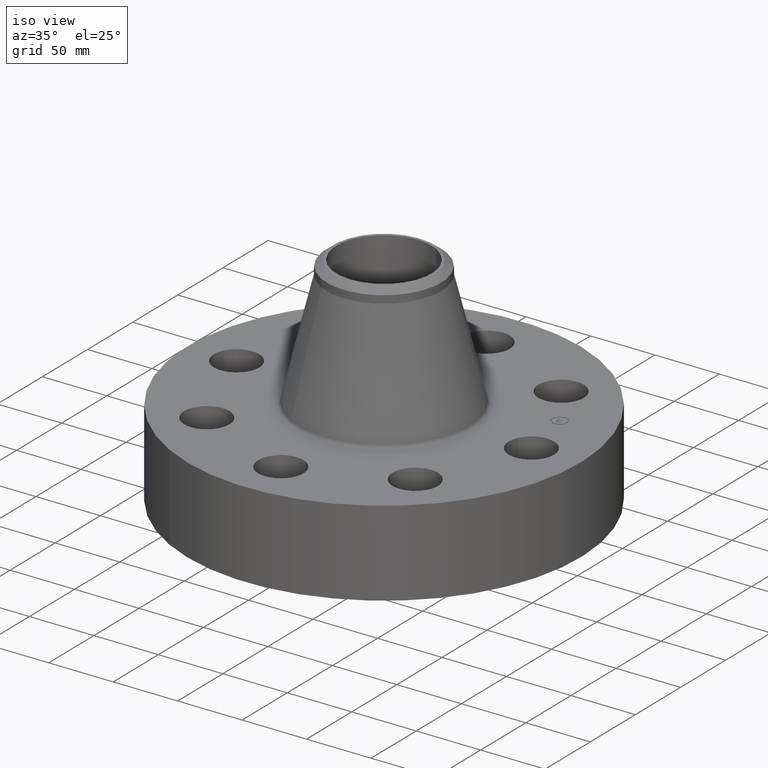
[diagram: clean part render]
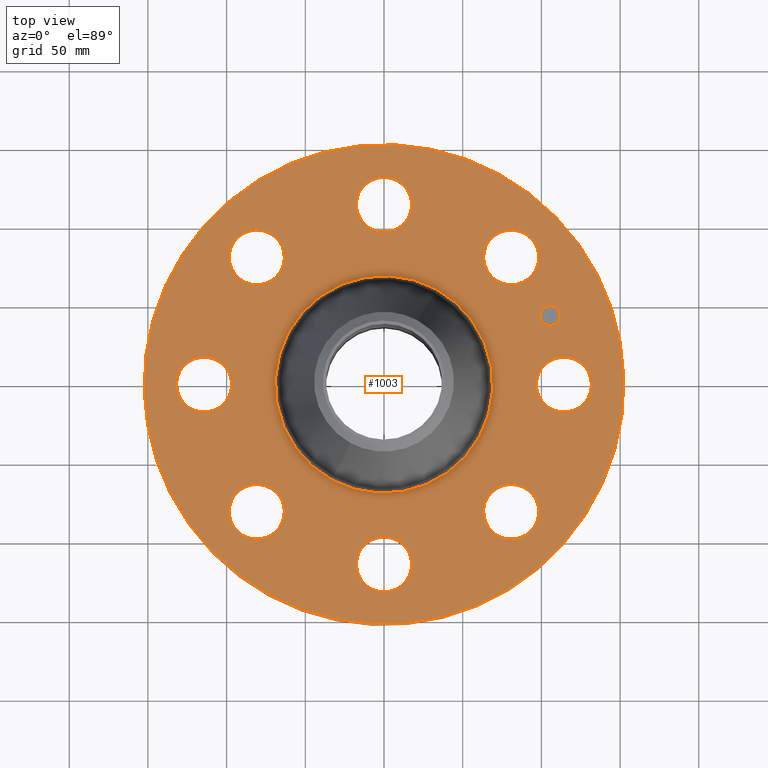
[diagram: tour spotlight — one face highlighted and labeled with its STEP entity id]
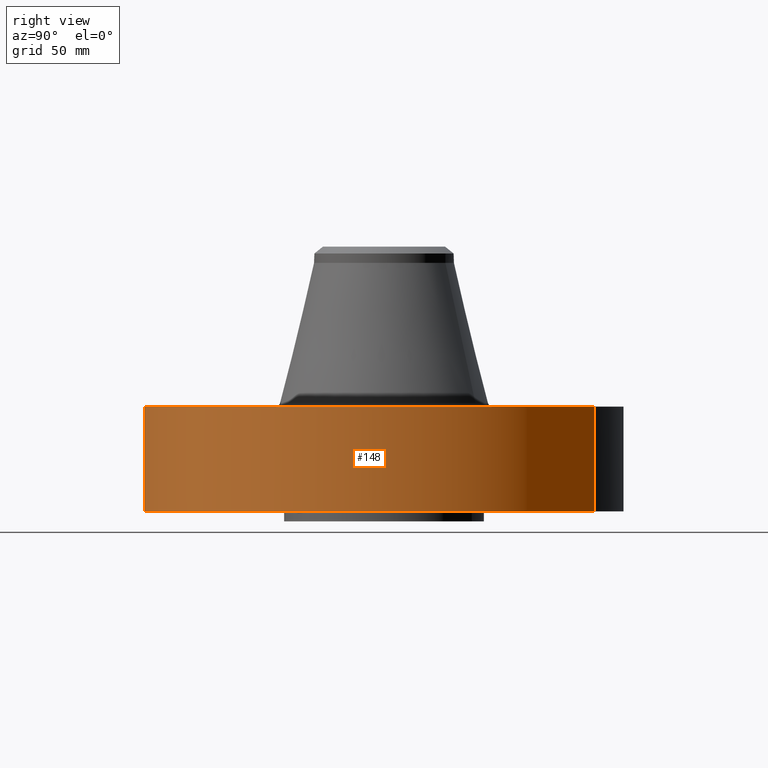
[diagram: tour spotlight — one face highlighted and labeled with its STEP entity id]
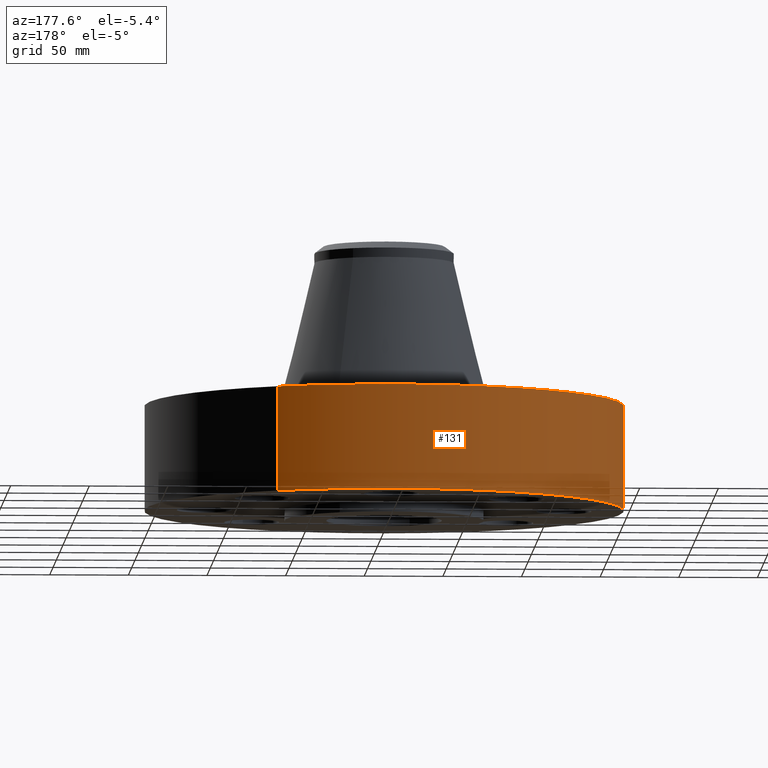
[diagram: tour spotlight — one face highlighted and labeled with its STEP entity id]
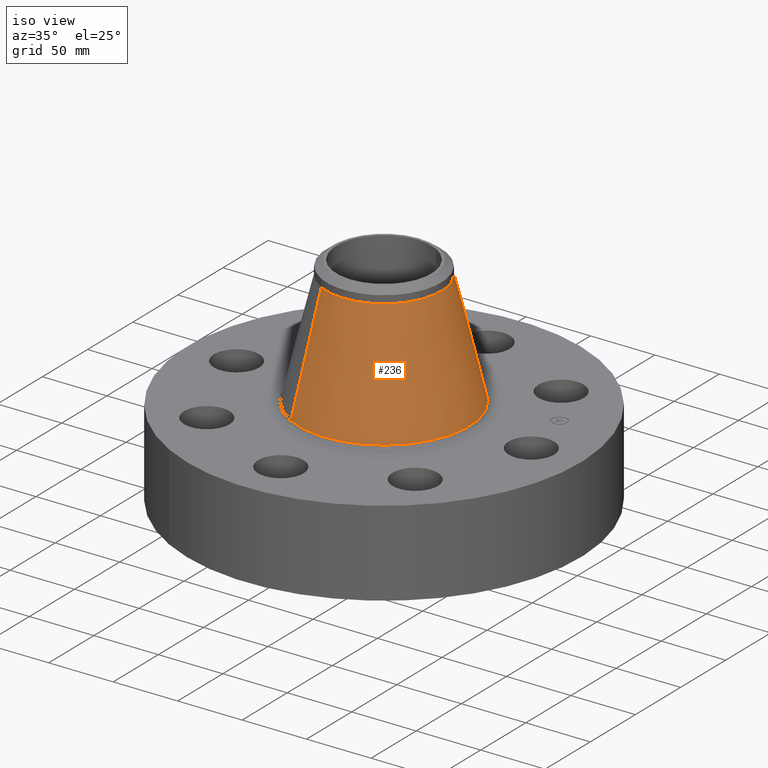
[diagram: tour spotlight — one face highlighted and labeled with its STEP entity id]
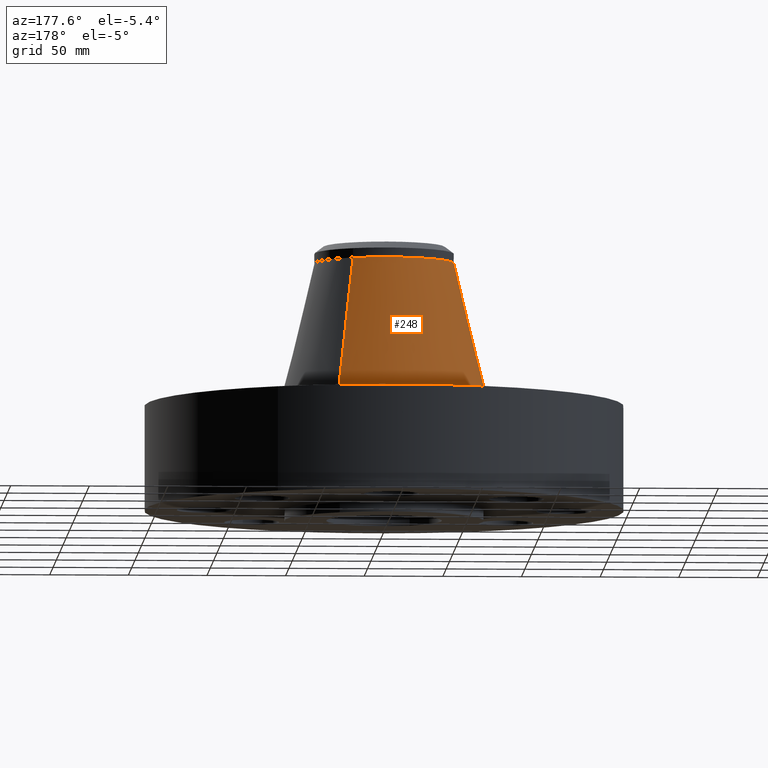
[diagram: tour spotlight — one face highlighted and labeled with its STEP entity id]
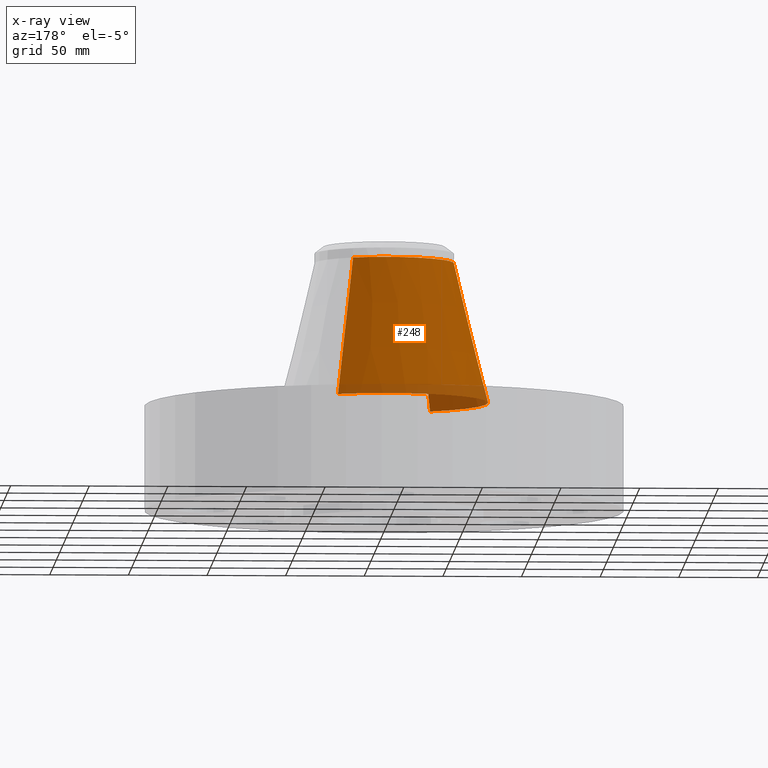
[diagram: x-ray of the same camera — body ghosted, this tour face saturated]
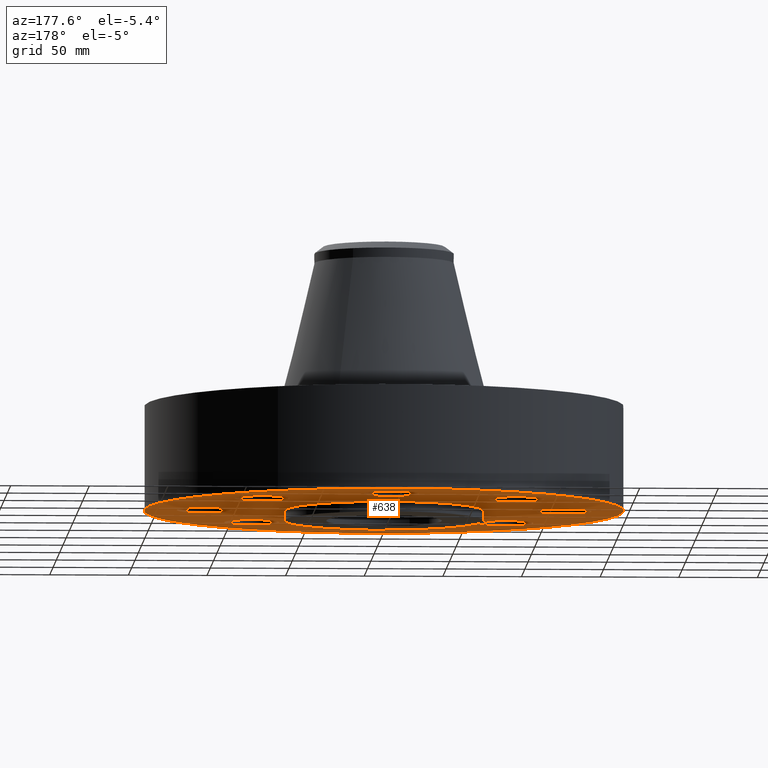
[diagram: tour spotlight — one face highlighted and labeled with its STEP entity id]
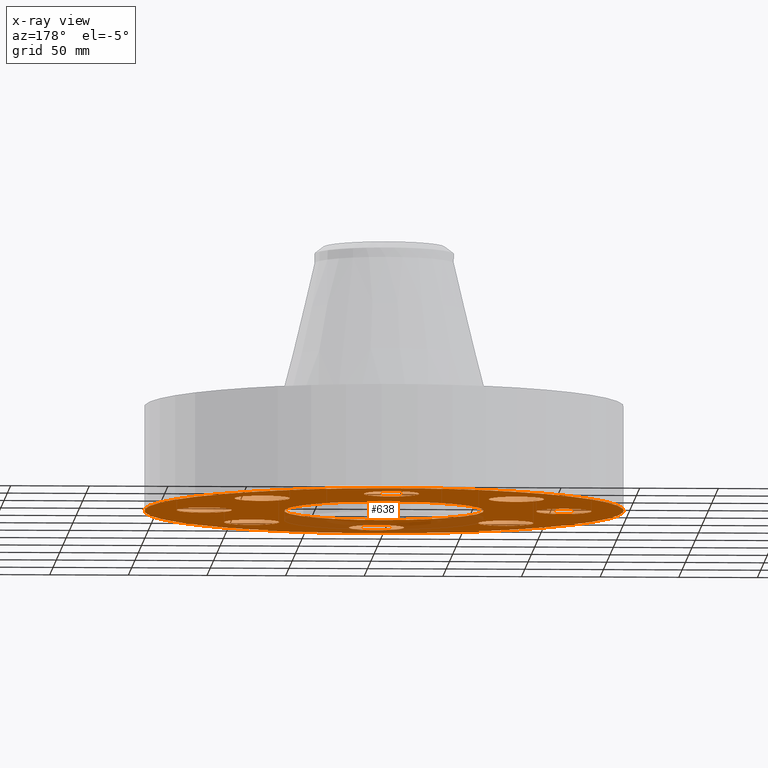
[diagram: x-ray of the same camera — body ghosted, this tour face saturated]
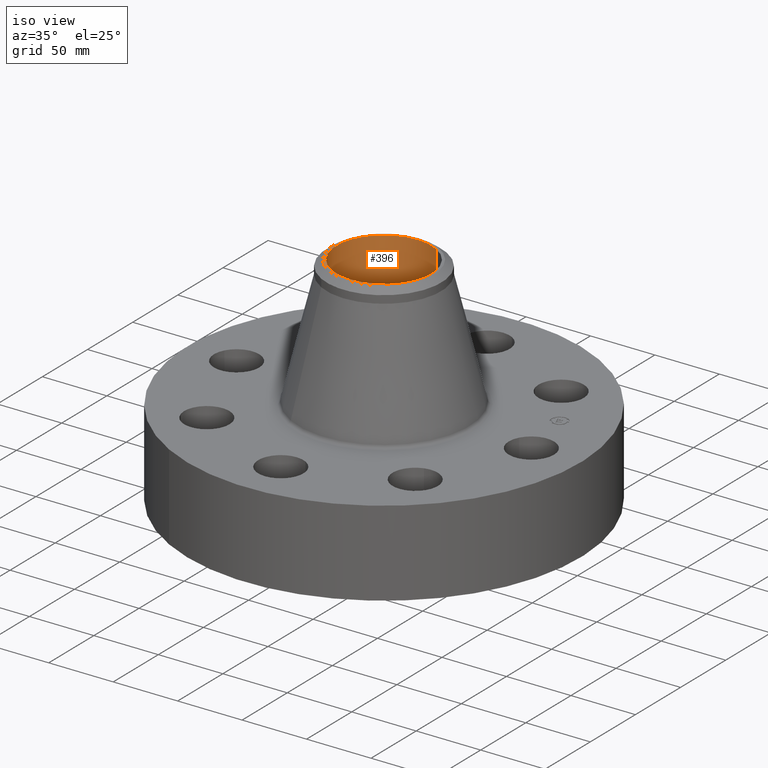
[diagram: tour spotlight — one face highlighted and labeled with its STEP entity id]
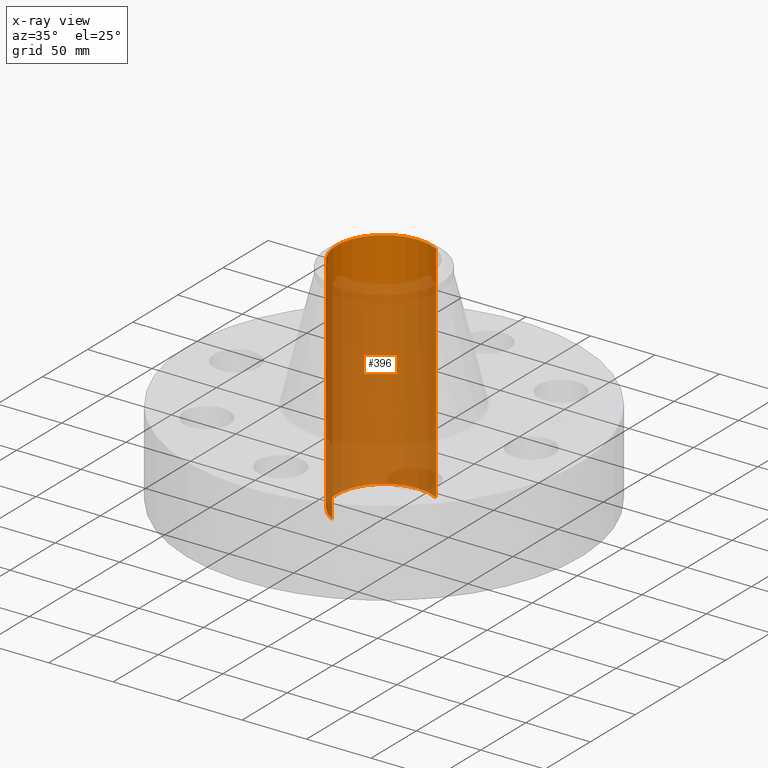
[diagram: x-ray of the same camera — body ghosted, this tour face saturated]
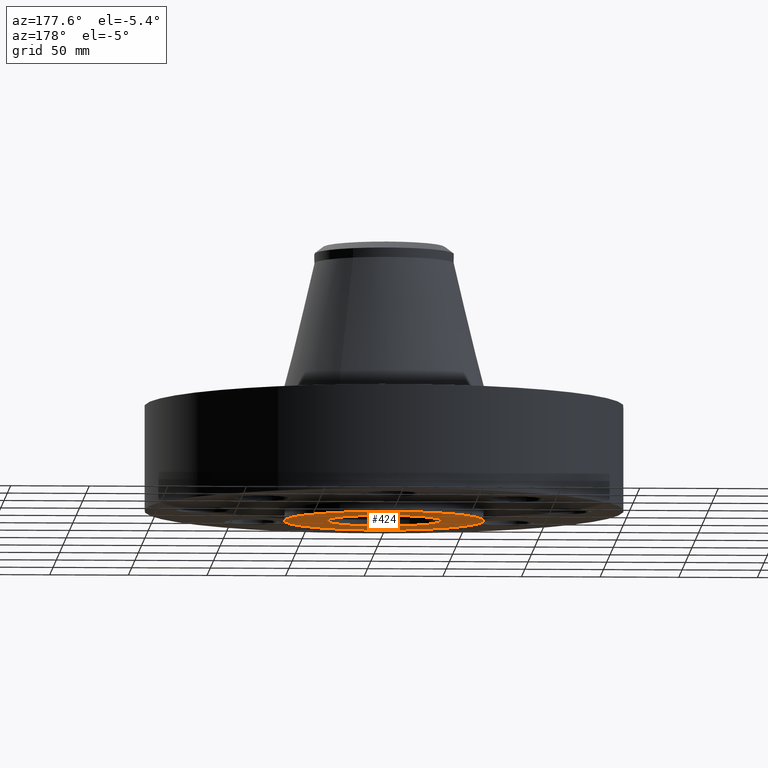
[diagram: tour spotlight — one face highlighted and labeled with its STEP entity id]
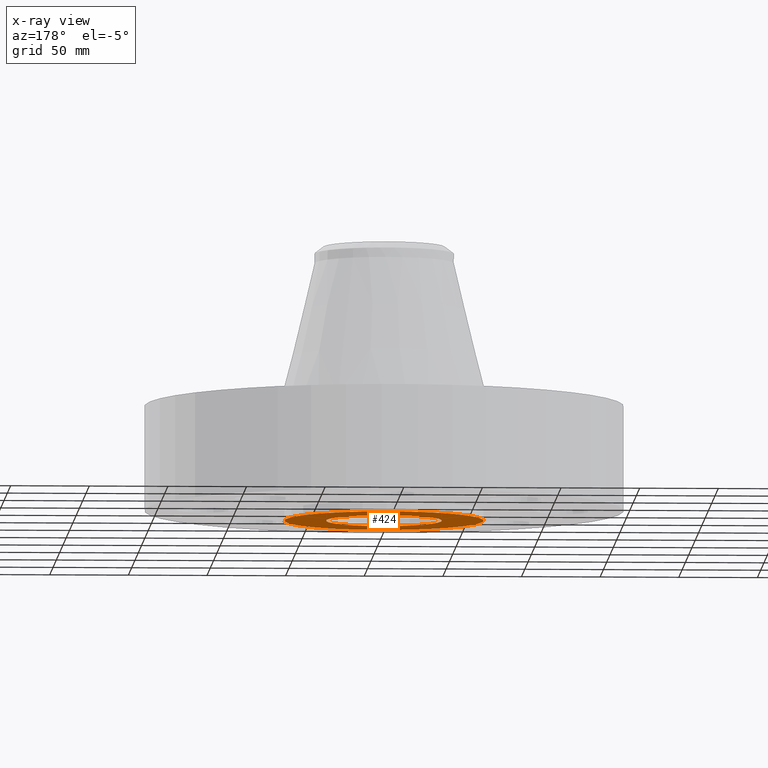
[diagram: x-ray of the same camera — body ghosted, this tour face saturated]
A machine part: a face-by-face anatomy tour. The part has 419 B-rep faces; the first image is the clean iso view, then the 8 largest visible faces are spotlighted one at a time (largest first), each with its STEP entity span.

Face 1 — top view, entity #1003. In plain terms, the highlighted planar face has unit normal (0, 0, -1).
Definition (entity closure, byte-faithful):
#65=AXIS2_PLACEMENT_3D('Circle Axis2P3D',#63,#64,$) ;
#82=AXIS2_PLACEMENT_3D('Circle Axis2P3D',#80,#81,$) ;
#115=AXIS2_PLACEMENT_3D('Circle Axis2P3D',#113,#114,$) ;
#139=AXIS2_PLACEMENT_3D('Circle Axis2P3D',#137,#138,$) ;
#156=AXIS2_PLACEMENT_3D('Circle Axis2P3D',#154,#155,$) ;
#191=AXIS2_PLACEMENT_3D('Circle Axis2P3D',#189,#190,$) ;
#660=AXIS2_PLACEMENT_3D('Circle Axis2P3D',#658,#659,$) ;
#672=AXIS2_PLACEMENT_3D('Circle Axis2P3D',#670,#671,$) ;
#703=AXIS2_PLACEMENT_3D('Circle Axis2P3D',#701,#702,$) ;
#715=AXIS2_PLACEMENT_3D('Circle Axis2P3D',#713,#714,$) ;
#746=AXIS2_PLACEMENT_3D('Circle Axis2P3D',#744,#745,$) ;
#758=AXIS2_PLACEMENT_3D('Circle Axis2P3D',#756,#757,$) ;
#789=AXIS2_PLACEMENT_3D('Circle Axis2P3D',#787,#788,$) ;
#801=AXIS2_PLACEMENT_3D('Circle Axis2P3D',#799,#800,$) ;
#832=AXIS2_PLACEMENT_3D('Circle Axis2P3D',#830,#831,$) ;
#844=AXIS2_PLACEMENT_3D('Circle Axis2P3D',#842,#843,$) ;
#875=AXIS2_PLACEMENT_3D('Circle Axis2P3D',#873,#874,$) ;
#887=AXIS2_PLACEMENT_3D('Circle Axis2P3D',#885,#886,$) ;
#918=AXIS2_PLACEMENT_3D('Circle Axis2P3D',#916,#917,$) ;
#930=AXIS2_PLACEMENT_3D('Circle Axis2P3D',#928,#929,$) ;
#943=AXIS2_PLACEMENT_3D('Plane Axis2P3D',#940,#941,#942) ;
#987=AXIS2_PLACEMENT_3D('Circle Axis2P3D',#985,#986,$) ;
#996=AXIS2_PLACEMENT_3D('Circle Axis2P3D',#994,#995,$) ;
#46=CARTESIAN_POINT('Vertex',(3.89446803231,0.330803621638,2.62000000001)) ;
#60=CARTESIAN_POINT('Vertex',(5.10553196772,-0.330803621638,2.62000000001)) ;
#63=CARTESIAN_POINT('Axis2P3D Location',(4.50000000002,0.,2.62000000001)) ;
#80=CARTESIAN_POINT('Axis2P3D Location',(4.50000000002,0.,2.62000000001)) ;
#110=CARTESIAN_POINT('Vertex',(-2.87655323164,-5.26549537136,2.62000000001)) ;
#113=CARTESIAN_POINT('Axis2P3D Location',(0.,0.,2.62000000001)) ;
#117=CARTESIAN_POINT('Vertex',(2.87655323164,5.26549537136,2.62000000001)) ;
#137=CARTESIAN_POINT('Axis2P3D Location',(0.,0.,2.62000000001)) ;
#154=CARTESIAN_POINT('Axis2P3D Location',(0.,0.,2.62000000001)) ;
#158=CARTESIAN_POINT('Vertex',(1.30369700467,2.38640135989,2.62000000001)) ;
#160=CARTESIAN_POINT('Vertex',(-1.30369700467,-2.38640135989,2.62000000001)) ;
#189=CARTESIAN_POINT('Axis2P3D Location',(0.,0.,2.62000000001)) ;
#648=CARTESIAN_POINT('Vertex',(-2.98771823886,2.51989127066,2.62000000001)) ;
#655=CARTESIAN_POINT('Vertex',(-3.37624279184,3.84406976004,2.62000000001)) ;
#658=CARTESIAN_POINT('Axis2P3D Location',(-3.18198051535,3.18198051535,2.62000000001)) ;
#670=CARTESIAN_POINT('Axis2P3D Location',(-3.18198051535,3.18198051535,2.62000000001)) ;
#691=CARTESIAN_POINT('Vertex',(0.330803621638,-3.89446803231,2.62000000001)) ;
#698=CARTESIAN_POINT('Vertex',(-0.330803621638,-5.10553196772,2.62000000001)) ;
#701=CARTESIAN_POINT('Axis2P3D Location',(-2.83936939293E-016,-4.50000000002,2.62000000001)) ;
#713=CARTESIAN_POINT('Axis2P3D Location',(-2.83936939293E-016,-4.50000000002,2.62000000001)) ;
#734=CARTESIAN_POINT('Vertex',(-0.330803621638,3.89446803231,2.62000000001)) ;
#741=CARTESIAN_POINT('Vertex',(0.330803621638,5.10553196772,2.62000000001)) ;
#744=CARTESIAN_POINT('Axis2P3D Location',(-2.67154120325E-016,4.50000000002,2.62000000001)) ;
#756=CARTESIAN_POINT('Axis2P3D Location',(-2.67154120325E-016,4.50000000002,2.62000000001)) ;
#777=CARTESIAN_POINT('Vertex',(-2.51989127066,-2.98771823886,2.62000000001)) ;
#784=CARTESIAN_POINT('Vertex',(-3.84406976004,-3.37624279184,2.62000000001)) ;
#787=CARTESIAN_POINT('Axis2P3D Location',(-3.18198051535,-3.18198051535,2.62000000001)) ;
#799=CARTESIAN_POINT('Axis2P3D Location',(-3.18198051535,-3.18198051535,2.62000000001)) ;
#820=CARTESIAN_POINT('Vertex',(2.51989127066,2.98771823886,2.62000000001)) ;
#827=CARTESIAN_POINT('Vertex',(3.84406976004,3.37624279184,2.62000000001)) ;
#830=CARTESIAN_POINT('Axis2P3D Location',(3.18198051535,3.18198051535,2.62000000001)) ;
#842=CARTESIAN_POINT('Axis2P3D Location',(3.18198051535,3.18198051535,2.62000000001)) ;
#863=CARTESIAN_POINT('Vertex',(-3.89446803231,-0.330803621638,2.62000000001)) ;
#870=CARTESIAN_POINT('Vertex',(-5.10553196772,0.330803621638,2.62000000001)) ;
#873=CARTESIAN_POINT('Axis2P3D Location',(-4.50000000002,-5.51091059619E-016,2.62000000001)) ;
#885=CARTESIAN_POINT('Axis2P3D Location',(-4.50000000002,-5.51091059619E-016,2.62000000001)) ;
#906=CARTESIAN_POINT('Vertex',(2.98771823886,-2.51989127066,2.62000000001)) ;
#913=CARTESIAN_POINT('Vertex',(3.37624279184,-3.84406976004,2.62000000001)) ;
#916=CARTESIAN_POINT('Axis2P3D Location',(3.18198051535,-3.18198051535,2.62000000001)) ;
#928=CARTESIAN_POINT('Axis2P3D Location',(3.18198051535,-3.18198051535,2.62000000001)) ;
#940=CARTESIAN_POINT('Axis2P3D Location',(0.,6.00000000002,2.62000000001)) ;
#985=CARTESIAN_POINT('Axis2P3D Location',(4.15745789632,1.72207544565,2.62000000001)) ;
#989=CARTESIAN_POINT('Vertex',(4.06274374681,1.95073562995,2.62000000001)) ;
#991=CARTESIAN_POINT('Vertex',(4.25217204583,1.49341526135,2.62000000001)) ;
#994=CARTESIAN_POINT('Axis2P3D Location',(4.15745789632,1.72207544565,2.62000000001)) ;
#64=DIRECTION('Axis2P3D Direction',(0.,-0.,-0.0393700787402)) ;
#81=DIRECTION('Axis2P3D Direction',(0.,-0.,-0.0393700787402)) ;
#114=DIRECTION('Axis2P3D Direction',(0.,0.,-0.0393700787402)) ;
#138=DIRECTION('Axis2P3D Direction',(0.,0.,-0.0393700787402)) ;
#155=DIRECTION('Axis2P3D Direction',(0.,0.,-0.0393700787402)) ;
#190=DIRECTION('Axis2P3D Direction',(0.,0.,-0.0393700787402)) ;
#659=DIRECTION('Axis2P3D Direction',(0.,0.,-0.0393700787402)) ;
#671=DIRECTION('Axis2P3D Direction',(0.,0.,-0.0393700787402)) ;
#702=DIRECTION('Axis2P3D Direction',(0.,-0.,-0.0393700787402)) ;
#714=DIRECTION('Axis2P3D Direction',(0.,-0.,-0.0393700787402)) ;
#745=DIRECTION('Axis2P3D Direction',(0.,0.,-0.0393700787402)) ;
#757=DIRECTION('Axis2P3D Direction',(0.,0.,-0.0393700787402)) ;
#788=DIRECTION('Axis2P3D Direction',(-0.,0.,-0.0393700787402)) ;
#800=DIRECTION('Axis2P3D Direction',(-0.,0.,-0.0393700787402)) ;
#831=DIRECTION('Axis2P3D Direction',(0.,0.,-0.0393700787402)) ;
#843=DIRECTION('Axis2P3D Direction',(0.,0.,-0.0393700787402)) ;
#874=DIRECTION('Axis2P3D Direction',(-0.,0.,-0.0393700787402)) ;
#886=DIRECTION('Axis2P3D Direction',(-0.,0.,-0.0393700787402)) ;
#917=DIRECTION('Axis2P3D Direction',(0.,-0.,-0.0393700787402)) ;
#929=DIRECTION('Axis2P3D Direction',(0.,-0.,-0.0393700787402)) ;
#941=DIRECTION('Axis2P3D Direction',(0.,0.,-0.0393700787402)) ;
#942=DIRECTION('Axis2P3D XDirection',(0.0393700787402,0.,0.)) ;
#986=DIRECTION('Axis2P3D Direction',(0.,0.,-0.0393700787402)) ;
#995=DIRECTION('Axis2P3D Direction',(0.,0.,-0.0393700787402)) ;
#946=ORIENTED_EDGE('',*,*,#141,.F.) ;
#947=ORIENTED_EDGE('',*,*,#119,.F.) ;
#950=ORIENTED_EDGE('',*,*,#67,.T.) ;
#951=ORIENTED_EDGE('',*,*,#84,.T.) ;
#954=ORIENTED_EDGE('',*,*,#193,.T.) ;
#955=ORIENTED_EDGE('',*,*,#162,.T.) ;
#958=ORIENTED_EDGE('',*,*,#932,.T.) ;
#959=ORIENTED_EDGE('',*,*,#920,.T.) ;
#962=ORIENTED_EDGE('',*,*,#717,.T.) ;
#963=ORIENTED_EDGE('',*,*,#705,.T.) ;
#966=ORIENTED_EDGE('',*,*,#803,.T.) ;
#967=ORIENTED_EDGE('',*,*,#791,.T.) ;
#970=ORIENTED_EDGE('',*,*,#889,.T.) ;
#971=ORIENTED_EDGE('',*,*,#877,.T.) ;
#974=ORIENTED_EDGE('',*,*,#674,.T.) ;
#975=ORIENTED_EDGE('',*,*,#662,.T.) ;
#978=ORIENTED_EDGE('',*,*,#760,.T.) ;
#979=ORIENTED_EDGE('',*,*,#748,.T.) ;
#982=ORIENTED_EDGE('',*,*,#846,.T.) ;
#983=ORIENTED_EDGE('',*,*,#834,.T.) ;
#1000=ORIENTED_EDGE('',*,*,#993,.T.) ;
#1001=ORIENTED_EDGE('',*,*,#998,.T.) ;
#952=FACE_BOUND('',#949,.T.) ;
#956=FACE_BOUND('',#953,.T.) ;
#960=FACE_BOUND('',#957,.T.) ;
#964=FACE_BOUND('',#961,.T.) ;
#968=FACE_BOUND('',#965,.T.) ;
#972=FACE_BOUND('',#969,.T.) ;
#976=FACE_BOUND('',#973,.T.) ;
#980=FACE_BOUND('',#977,.T.) ;
#984=FACE_BOUND('',#981,.T.) ;
#1002=FACE_BOUND('',#999,.T.) ;
#1003=ADVANCED_FACE('PartBody',(#948,#952,#956,#960,#964,#968,#972,#976,#980,#984,#1002),#944,.F.) ;
#66=CIRCLE('generated circle',#65,0.690000000003) ;
#83=CIRCLE('generated circle',#82,0.690000000003) ;
#116=CIRCLE('generated circle',#115,6.00000000002) ;
#140=CIRCLE('generated circle',#139,6.00000000002) ;
#157=CIRCLE('generated circle',#156,2.71928985775) ;
#192=CIRCLE('generated circle',#191,2.71928985775) ;
#661=CIRCLE('generated circle',#660,0.690000000003) ;
#673=CIRCLE('generated circle',#672,0.690000000003) ;
#704=CIRCLE('generated circle',#703,0.690000000003) ;
#716=CIRCLE('generated circle',#715,0.690000000003) ;
#747=CIRCLE('generated circle',#746,0.690000000003) ;
#759=CIRCLE('generated circle',#758,0.690000000003) ;
#790=CIRCLE('generated circle',#789,0.690000000003) ;
#802=CIRCLE('generated circle',#801,0.690000000003) ;
#833=CIRCLE('generated circle',#832,0.690000000003) ;
#845=CIRCLE('generated circle',#844,0.690000000003) ;
#876=CIRCLE('generated circle',#875,0.690000000003) ;
#888=CIRCLE('generated circle',#887,0.690000000003) ;
#919=CIRCLE('generated circle',#918,0.690000000003) ;
#931=CIRCLE('generated circle',#930,0.690000000003) ;
#988=CIRCLE('generated circle',#987,0.247500000001) ;
#997=CIRCLE('generated circle',#996,0.247500000001) ;
#67=EDGE_CURVE('',#47,#61,#66,.T.) ;
#84=EDGE_CURVE('',#61,#47,#83,.T.) ;
#119=EDGE_CURVE('',#111,#118,#116,.T.) ;
#141=EDGE_CURVE('',#118,#111,#140,.T.) ;
#162=EDGE_CURVE('',#159,#161,#157,.T.) ;
#193=EDGE_CURVE('',#161,#159,#192,.T.) ;
#662=EDGE_CURVE('',#649,#656,#661,.T.) ;
#674=EDGE_CURVE('',#656,#649,#673,.T.) ;
#705=EDGE_CURVE('',#692,#699,#704,.T.) ;
#717=EDGE_CURVE('',#699,#692,#716,.T.) ;
#748=EDGE_CURVE('',#735,#742,#747,.T.) ;
#760=EDGE_CURVE('',#742,#735,#759,.T.) ;
#791=EDGE_CURVE('',#778,#785,#790,.T.) ;
#803=EDGE_CURVE('',#785,#778,#802,.T.) ;
#834=EDGE_CURVE('',#821,#828,#833,.T.) ;
#846=EDGE_CURVE('',#828,#821,#845,.T.) ;
#877=EDGE_CURVE('',#864,#871,#876,.T.) ;
#889=EDGE_CURVE('',#871,#864,#888,.T.) ;
#920=EDGE_CURVE('',#907,#914,#919,.T.) ;
#932=EDGE_CURVE('',#914,#907,#931,.T.) ;
#993=EDGE_CURVE('',#990,#992,#988,.T.) ;
#998=EDGE_CURVE('',#992,#990,#997,.T.) ;
#945=EDGE_LOOP('',(#946,#947)) ;
#949=EDGE_LOOP('',(#950,#951)) ;
#953=EDGE_LOOP('',(#954,#955)) ;
#957=EDGE_LOOP('',(#958,#959)) ;
#961=EDGE_LOOP('',(#962,#963)) ;
#965=EDGE_LOOP('',(#966,#967)) ;
#969=EDGE_LOOP('',(#970,#971)) ;
#973=EDGE_LOOP('',(#974,#975)) ;
#977=EDGE_LOOP('',(#978,#979)) ;
#981=EDGE_LOOP('',(#982,#983)) ;
#999=EDGE_LOOP('',(#1000,#1001)) ;
#948=FACE_OUTER_BOUND('',#945,.T.) ;
#944=PLANE('',#943) ;
#47=VERTEX_POINT('',#46) ;
#61=VERTEX_POINT('',#60) ;
#111=VERTEX_POINT('',#110) ;
#118=VERTEX_POINT('',#117) ;
#159=VERTEX_POINT('',#158) ;
#161=VERTEX_POINT('',#160) ;
#649=VERTEX_POINT('',#648) ;
#656=VERTEX_POINT('',#655) ;
#692=VERTEX_POINT('',#691) ;
#699=VERTEX_POINT('',#698) ;
#735=VERTEX_POINT('',#734) ;
#742=VERTEX_POINT('',#741) ;
#778=VERTEX_POINT('',#777) ;
#785=VERTEX_POINT('',#784) ;
#821=VERTEX_POINT('',#820) ;
#828=VERTEX_POINT('',#827) ;
#864=VERTEX_POINT('',#863) ;
#871=VERTEX_POINT('',#870) ;
#907=VERTEX_POINT('',#906) ;
#914=VERTEX_POINT('',#913) ;
#990=VERTEX_POINT('',#989) ;
#992=VERTEX_POINT('',#991) ;

Face 2 — right view, entity #148. In plain terms, the highlighted cylindrical surface (partial cylindrical patch) has radius 152.4 mm, axis along (0, 0, -1).
Definition (entity closure, byte-faithful):
#95=AXIS2_PLACEMENT_3D('Cylinder Axis2P3D',#92,#93,#94) ;
#134=AXIS2_PLACEMENT_3D('Circle Axis2P3D',#132,#133,$) ;
#139=AXIS2_PLACEMENT_3D('Circle Axis2P3D',#137,#138,$) ;
#92=CARTESIAN_POINT('Axis2P3D Location',(0.,0.,3.18500000001)) ;
#101=CARTESIAN_POINT('Vertex',(-2.87655323164,-5.26549537136,5.59482469102E-016)) ;
#103=CARTESIAN_POINT('Vertex',(2.87655323164,5.26549537136,5.59482469102E-016)) ;
#106=CARTESIAN_POINT('Line Origine',(-2.87655323164,-5.26549537136,1.31000000001)) ;
#110=CARTESIAN_POINT('Vertex',(-2.87655323164,-5.26549537136,2.62000000001)) ;
#117=CARTESIAN_POINT('Vertex',(2.87655323164,5.26549537136,2.62000000001)) ;
#120=CARTESIAN_POINT('Line Origine',(2.87655323164,5.26549537136,1.31000000001)) ;
#132=CARTESIAN_POINT('Axis2P3D Location',(0.,0.,5.59482469102E-016)) ;
#137=CARTESIAN_POINT('Axis2P3D Location',(0.,0.,2.62000000001)) ;
#93=DIRECTION('Axis2P3D Direction',(0.,0.,-0.0393700787402)) ;
#94=DIRECTION('Axis2P3D XDirection',(0.0188750212049,0.0345504945626,0.)) ;
#107=DIRECTION('Vector Direction',(0.,0.,-0.0393700787402)) ;
#121=DIRECTION('Vector Direction',(0.,0.,-0.0393700787402)) ;
#133=DIRECTION('Axis2P3D Direction',(0.,0.,-0.0393700787402)) ;
#138=DIRECTION('Axis2P3D Direction',(0.,0.,-0.0393700787402)) ;
#108=VECTOR('Line Direction',#107,0.0393700787402) ;
#122=VECTOR('Line Direction',#121,0.0393700787402) ;
#143=ORIENTED_EDGE('',*,*,#136,.F.) ;
#144=ORIENTED_EDGE('',*,*,#124,.T.) ;
#145=ORIENTED_EDGE('',*,*,#141,.T.) ;
#146=ORIENTED_EDGE('',*,*,#112,.F.) ;
#148=ADVANCED_FACE('PartBody',(#147),#96,.T.) ;
#135=CIRCLE('generated circle',#134,6.00000000002) ;
#140=CIRCLE('generated circle',#139,6.00000000002) ;
#96=CYLINDRICAL_SURFACE('generated cylinder',#95,6.00000000002) ;
#112=EDGE_CURVE('',#102,#111,#109,.F.) ;
#124=EDGE_CURVE('',#104,#118,#123,.F.) ;
#136=EDGE_CURVE('',#104,#102,#135,.T.) ;
#141=EDGE_CURVE('',#118,#111,#140,.T.) ;
#142=EDGE_LOOP('',(#143,#144,#145,#146)) ;
#147=FACE_OUTER_BOUND('',#142,.T.) ;
#109=LINE('Line',#106,#108) ;
#123=LINE('Line',#120,#122) ;
#102=VERTEX_POINT('',#101) ;
#104=VERTEX_POINT('',#103) ;
#111=VERTEX_POINT('',#110) ;
#118=VERTEX_POINT('',#117) ;

Face 3 — auxiliary view, entity #131. In plain terms, the highlighted cylindrical surface (partial cylindrical patch) has radius 152.4 mm, axis along (0, 0, -1).
Definition (entity closure, byte-faithful):
#95=AXIS2_PLACEMENT_3D('Cylinder Axis2P3D',#92,#93,#94) ;
#99=AXIS2_PLACEMENT_3D('Circle Axis2P3D',#97,#98,$) ;
#115=AXIS2_PLACEMENT_3D('Circle Axis2P3D',#113,#114,$) ;
#92=CARTESIAN_POINT('Axis2P3D Location',(0.,0.,3.18500000001)) ;
#97=CARTESIAN_POINT('Axis2P3D Location',(0.,0.,5.59482469102E-016)) ;
#101=CARTESIAN_POINT('Vertex',(-2.87655323164,-5.26549537136,5.59482469102E-016)) ;
#103=CARTESIAN_POINT('Vertex',(2.87655323164,5.26549537136,5.59482469102E-016)) ;
#106=CARTESIAN_POINT('Line Origine',(-2.87655323164,-5.26549537136,1.31000000001)) ;
#110=CARTESIAN_POINT('Vertex',(-2.87655323164,-5.26549537136,2.62000000001)) ;
#113=CARTESIAN_POINT('Axis2P3D Location',(0.,0.,2.62000000001)) ;
#117=CARTESIAN_POINT('Vertex',(2.87655323164,5.26549537136,2.62000000001)) ;
#120=CARTESIAN_POINT('Line Origine',(2.87655323164,5.26549537136,1.31000000001)) ;
#93=DIRECTION('Axis2P3D Direction',(0.,0.,-0.0393700787402)) ;
#94=DIRECTION('Axis2P3D XDirection',(0.0188750212049,0.0345504945626,0.)) ;
#98=DIRECTION('Axis2P3D Direction',(0.,0.,-0.0393700787402)) ;
#107=DIRECTION('Vector Direction',(0.,0.,-0.0393700787402)) ;
#114=DIRECTION('Axis2P3D Direction',(0.,0.,-0.0393700787402)) ;
#121=DIRECTION('Vector Direction',(0.,0.,-0.0393700787402)) ;
#108=VECTOR('Line Direction',#107,0.0393700787402) ;
#122=VECTOR('Line Direction',#121,0.0393700787402) ;
#126=ORIENTED_EDGE('',*,*,#105,.F.) ;
#127=ORIENTED_EDGE('',*,*,#112,.T.) ;
#128=ORIENTED_EDGE('',*,*,#119,.T.) ;
#129=ORIENTED_EDGE('',*,*,#124,.F.) ;
#131=ADVANCED_FACE('PartBody',(#130),#96,.T.) ;
#100=CIRCLE('generated circle',#99,6.00000000002) ;
#116=CIRCLE('generated circle',#115,6.00000000002) ;
#96=CYLINDRICAL_SURFACE('generated cylinder',#95,6.00000000002) ;
#105=EDGE_CURVE('',#102,#104,#100,.T.) ;
#112=EDGE_CURVE('',#102,#111,#109,.F.) ;
#119=EDGE_CURVE('',#111,#118,#116,.T.) ;
#124=EDGE_CURVE('',#104,#118,#123,.F.) ;
#125=EDGE_LOOP('',(#126,#127,#128,#129)) ;
#130=FACE_OUTER_BOUND('',#125,.T.) ;
#109=LINE('Line',#106,#108) ;
#123=LINE('Line',#120,#122) ;
#102=VERTEX_POINT('',#101) ;
#104=VERTEX_POINT('',#103) ;
#111=VERTEX_POINT('',#110) ;
#118=VERTEX_POINT('',#117) ;

Face 4 — iso view, entity #236. In plain terms, the highlighted conical surface has half-angle 13.683 deg.
Definition (entity closure, byte-faithful):
#172=AXIS2_PLACEMENT_3D('Circle Axis2P3D',#170,#171,$) ;
#209=AXIS2_PLACEMENT_3D('Cone Axis2P3D',#206,#207,#208) ;
#220=AXIS2_PLACEMENT_3D('Circle Axis2P3D',#218,#219,$) ;
#167=CARTESIAN_POINT('Vertex',(1.24779873299,2.28408025991,2.71161381106)) ;
#170=CARTESIAN_POINT('Axis2P3D Location',(0.,0.,2.71161381106)) ;
#174=CARTESIAN_POINT('Vertex',(-1.24779873299,-2.28408025991,2.71161381106)) ;
#206=CARTESIAN_POINT('Axis2P3D Location',(0.,0.,6.21400087906)) ;
#211=CARTESIAN_POINT('Line Origine',(1.04339671278,1.90992487161,4.46280734506)) ;
#215=CARTESIAN_POINT('Vertex',(0.838994692561,1.53576948331,6.21400087906)) ;
#218=CARTESIAN_POINT('Axis2P3D Location',(0.,0.,6.21400087906)) ;
#222=CARTESIAN_POINT('Vertex',(-0.838994692561,-1.53576948331,6.21400087906)) ;
#225=CARTESIAN_POINT('Line Origine',(-1.04339671278,-1.90992487161,4.46280734506)) ;
#171=DIRECTION('Axis2P3D Direction',(0.,0.,-0.0393700787402)) ;
#207=DIRECTION('Axis2P3D Direction',(0.,0.,-0.0393700787402)) ;
#208=DIRECTION('Axis2P3D XDirection',(-0.0188750212049,-0.0345504945626,0.)) ;
#212=DIRECTION('Vector Direction',(0.00446491598683,0.00817297389236,-0.0382527139298)) ;
#219=DIRECTION('Axis2P3D Direction',(0.,0.,-0.0393700787402)) ;
#226=DIRECTION('Vector Direction',(-0.00446491598683,-0.00817297389236,-0.0382527139298)) ;
#213=VECTOR('Line Direction',#212,0.0393700787402) ;
#227=VECTOR('Line Direction',#226,0.0393700787402) ;
#231=ORIENTED_EDGE('',*,*,#176,.F.) ;
#232=ORIENTED_EDGE('',*,*,#217,.T.) ;
#233=ORIENTED_EDGE('',*,*,#224,.T.) ;
#234=ORIENTED_EDGE('',*,*,#229,.F.) ;
#236=ADVANCED_FACE('PartBody',(#235),#210,.T.) ;
#173=CIRCLE('generated circle',#172,2.60269558569) ;
#221=CIRCLE('generated circle',#220,1.75000000001) ;
#210=CONICAL_SURFACE('Cone',#209,1.75000000001,0.238815154699) ;
#176=EDGE_CURVE('',#168,#175,#173,.T.) ;
#217=EDGE_CURVE('',#168,#216,#214,.F.) ;
#224=EDGE_CURVE('',#216,#223,#221,.T.) ;
#229=EDGE_CURVE('',#175,#223,#228,.F.) ;
#230=EDGE_LOOP('',(#231,#232,#233,#234)) ;
#235=FACE_OUTER_BOUND('',#230,.T.) ;
#214=LINE('Line',#211,#213) ;
#228=LINE('Line',#225,#227) ;
#168=VERTEX_POINT('',#167) ;
#175=VERTEX_POINT('',#174) ;
#216=VERTEX_POINT('',#215) ;
#223=VERTEX_POINT('',#222) ;

Face 5 — auxiliary view, entity #248. An x-ray twin of the same camera follows (body ghosted, this face saturated) — the face is partly hidden behind the body. In plain terms, the highlighted conical surface has half-angle 13.683 deg.
Definition (entity closure, byte-faithful):
#196=AXIS2_PLACEMENT_3D('Circle Axis2P3D',#194,#195,$) ;
#209=AXIS2_PLACEMENT_3D('Cone Axis2P3D',#206,#207,#208) ;
#239=AXIS2_PLACEMENT_3D('Circle Axis2P3D',#237,#238,$) ;
#167=CARTESIAN_POINT('Vertex',(1.24779873299,2.28408025991,2.71161381106)) ;
#174=CARTESIAN_POINT('Vertex',(-1.24779873299,-2.28408025991,2.71161381106)) ;
#194=CARTESIAN_POINT('Axis2P3D Location',(0.,0.,2.71161381106)) ;
#206=CARTESIAN_POINT('Axis2P3D Location',(0.,0.,6.21400087906)) ;
#211=CARTESIAN_POINT('Line Origine',(1.04339671278,1.90992487161,4.46280734506)) ;
#215=CARTESIAN_POINT('Vertex',(0.838994692561,1.53576948331,6.21400087906)) ;
#222=CARTESIAN_POINT('Vertex',(-0.838994692561,-1.53576948331,6.21400087906)) ;
#225=CARTESIAN_POINT('Line Origine',(-1.04339671278,-1.90992487161,4.46280734506)) ;
#237=CARTESIAN_POINT('Axis2P3D Location',(0.,0.,6.21400087906)) ;
#195=DIRECTION('Axis2P3D Direction',(0.,0.,-0.0393700787402)) ;
#207=DIRECTION('Axis2P3D Direction',(0.,0.,-0.0393700787402)) ;
#208=DIRECTION('Axis2P3D XDirection',(-0.0188750212049,-0.0345504945626,0.)) ;
#212=DIRECTION('Vector Direction',(0.00446491598683,0.00817297389236,-0.0382527139298)) ;
#226=DIRECTION('Vector Direction',(-0.00446491598683,-0.00817297389236,-0.0382527139298)) ;
#238=DIRECTION('Axis2P3D Direction',(0.,0.,-0.0393700787402)) ;
#213=VECTOR('Line Direction',#212,0.0393700787402) ;
#227=VECTOR('Line Direction',#226,0.0393700787402) ;
#243=ORIENTED_EDGE('',*,*,#198,.F.) ;
#244=ORIENTED_EDGE('',*,*,#229,.T.) ;
#245=ORIENTED_EDGE('',*,*,#241,.T.) ;
#246=ORIENTED_EDGE('',*,*,#217,.F.) ;
#248=ADVANCED_FACE('PartBody',(#247),#210,.T.) ;
#197=CIRCLE('generated circle',#196,2.60269558569) ;
#240=CIRCLE('generated circle',#239,1.75000000001) ;
#210=CONICAL_SURFACE('Cone',#209,1.75000000001,0.238815154699) ;
#198=EDGE_CURVE('',#175,#168,#197,.T.) ;
#217=EDGE_CURVE('',#168,#216,#214,.F.) ;
#229=EDGE_CURVE('',#175,#223,#228,.F.) ;
#241=EDGE_CURVE('',#223,#216,#240,.T.) ;
#242=EDGE_LOOP('',(#243,#244,#245,#246)) ;
#247=FACE_OUTER_BOUND('',#242,.T.) ;
#214=LINE('Line',#211,#213) ;
#228=LINE('Line',#225,#227) ;
#168=VERTEX_POINT('',#167) ;
#175=VERTEX_POINT('',#174) ;
#216=VERTEX_POINT('',#215) ;
#223=VERTEX_POINT('',#222) ;

Face 6 — auxiliary view, entity #638. An x-ray twin of the same camera follows (body ghosted, this face saturated) — the face is partly hidden behind the body. In plain terms, the highlighted planar face has unit normal (0, 0, -1).
Definition (entity closure, byte-faithful):
#51=AXIS2_PLACEMENT_3D('Circle Axis2P3D',#49,#50,$) ;
#77=AXIS2_PLACEMENT_3D('Circle Axis2P3D',#75,#76,$) ;
#99=AXIS2_PLACEMENT_3D('Circle Axis2P3D',#97,#98,$) ;
#134=AXIS2_PLACEMENT_3D('Circle Axis2P3D',#132,#133,$) ;
#466=AXIS2_PLACEMENT_3D('Circle Axis2P3D',#464,#465,$) ;
#485=AXIS2_PLACEMENT_3D('Circle Axis2P3D',#483,#484,$) ;
#498=AXIS2_PLACEMENT_3D('Plane Axis2P3D',#495,#496,#497) ;
#514=AXIS2_PLACEMENT_3D('Circle Axis2P3D',#512,#513,$) ;
#523=AXIS2_PLACEMENT_3D('Circle Axis2P3D',#521,#522,$) ;
#532=AXIS2_PLACEMENT_3D('Circle Axis2P3D',#530,#531,$) ;
#541=AXIS2_PLACEMENT_3D('Circle Axis2P3D',#539,#540,$) ;
#550=AXIS2_PLACEMENT_3D('Circle Axis2P3D',#548,#549,$) ;
#559=AXIS2_PLACEMENT_3D('Circle Axis2P3D',#557,#558,$) ;
#568=AXIS2_PLACEMENT_3D('Circle Axis2P3D',#566,#567,$) ;
#577=AXIS2_PLACEMENT_3D('Circle Axis2P3D',#575,#576,$) ;
#586=AXIS2_PLACEMENT_3D('Circle Axis2P3D',#584,#585,$) ;
#595=AXIS2_PLACEMENT_3D('Circle Axis2P3D',#593,#594,$) ;
#604=AXIS2_PLACEMENT_3D('Circle Axis2P3D',#602,#603,$) ;
#613=AXIS2_PLACEMENT_3D('Circle Axis2P3D',#611,#612,$) ;
#622=AXIS2_PLACEMENT_3D('Circle Axis2P3D',#620,#621,$) ;
#631=AXIS2_PLACEMENT_3D('Circle Axis2P3D',#629,#630,$) ;
#44=CARTESIAN_POINT('Vertex',(3.89446803231,0.330803621638,0.)) ;
#49=CARTESIAN_POINT('Axis2P3D Location',(4.50000000002,0.,0.)) ;
#53=CARTESIAN_POINT('Vertex',(5.10553196772,-0.330803621638,0.)) ;
#75=CARTESIAN_POINT('Axis2P3D Location',(4.50000000002,0.,0.)) ;
#97=CARTESIAN_POINT('Axis2P3D Location',(0.,0.,5.59482469102E-016)) ;
#101=CARTESIAN_POINT('Vertex',(-2.87655323164,-5.26549537136,5.59482469102E-016)) ;
#103=CARTESIAN_POINT('Vertex',(2.87655323164,5.26549537136,5.59482469102E-016)) ;
#132=CARTESIAN_POINT('Axis2P3D Location',(0.,0.,5.59482469102E-016)) ;
#461=CARTESIAN_POINT('Vertex',(-1.19856384652,-2.19395640473,1.1189649382E-015)) ;
#464=CARTESIAN_POINT('Axis2P3D Location',(0.,0.,5.59482469102E-016)) ;
#468=CARTESIAN_POINT('Vertex',(1.19856384652,2.19395640473,1.1189649382E-015)) ;
#483=CARTESIAN_POINT('Axis2P3D Location',(0.,0.,5.59482469102E-016)) ;
#495=CARTESIAN_POINT('Axis2P3D Location',(0.,2.50000000001,0.)) ;
#512=CARTESIAN_POINT('Axis2P3D Location',(3.18198051535,-3.18198051535,0.)) ;
#516=CARTESIAN_POINT('Vertex',(2.98771823886,-2.51989127066,0.)) ;
#518=CARTESIAN_POINT('Vertex',(3.37624279184,-3.84406976004,0.)) ;
#521=CARTESIAN_POINT('Axis2P3D Location',(3.18198051535,-3.18198051535,0.)) ;
#530=CARTESIAN_POINT('Axis2P3D Location',(2.79741234551E-016,-4.50000000002,0.)) ;
#534=CARTESIAN_POINT('Vertex',(0.330803621638,-3.89446803231,0.)) ;
#536=CARTESIAN_POINT('Vertex',(-0.330803621638,-5.10553196772,0.)) ;
#539=CARTESIAN_POINT('Axis2P3D Location',(-4.89547160465E-016,-4.50000000002,0.)) ;
#548=CARTESIAN_POINT('Axis2P3D Location',(-3.18198051535,-3.18198051535,0.)) ;
#552=CARTESIAN_POINT('Vertex',(-2.51989127066,-2.98771823886,0.)) ;
#554=CARTESIAN_POINT('Vertex',(-3.84406976004,-3.37624279184,0.)) ;
#557=CARTESIAN_POINT('Axis2P3D Location',(-3.18198051535,-3.18198051535,0.)) ;
#566=CARTESIAN_POINT('Axis2P3D Location',(-4.50000000002,-2.79741234551E-016,0.)) ;
#570=CARTESIAN_POINT('Vertex',(-3.89446803231,-0.330803621638,0.)) ;
#572=CARTESIAN_POINT('Vertex',(-5.10553196772,0.330803621638,0.)) ;
#575=CARTESIAN_POINT('Axis2P3D Location',(-4.50000000002,-8.39223703654E-016,0.)) ;
#584=CARTESIAN_POINT('Axis2P3D Location',(-3.18198051535,3.18198051535,0.)) ;
#588=CARTESIAN_POINT('Vertex',(-2.98771823886,2.51989127066,0.)) ;
#590=CARTESIAN_POINT('Vertex',(-3.37624279184,3.84406976004,0.)) ;
#593=CARTESIAN_POINT('Axis2P3D Location',(-3.18198051535,3.18198051535,0.)) ;
#602=CARTESIAN_POINT('Axis2P3D Location',(-6.2941777774E-016,4.50000000002,0.)) ;
#606=CARTESIAN_POINT('Vertex',(-0.330803621638,3.89446803231,0.)) ;
#608=CARTESIAN_POINT('Vertex',(0.330803621638,5.10553196772,0.)) ;
#611=CARTESIAN_POINT('Axis2P3D Location',(-6.99353086378E-017,4.50000000002,0.)) ;
#620=CARTESIAN_POINT('Axis2P3D Location',(3.18198051535,3.18198051535,0.)) ;
#624=CARTESIAN_POINT('Vertex',(2.51989127066,2.98771823886,0.)) ;
#626=CARTESIAN_POINT('Vertex',(3.84406976004,3.37624279184,0.)) ;
#629=CARTESIAN_POINT('Axis2P3D Location',(3.18198051535,3.18198051535,0.)) ;
#50=DIRECTION('Axis2P3D Direction',(0.,-0.,-0.0393700787402)) ;
#76=DIRECTION('Axis2P3D Direction',(0.,-0.,-0.0393700787402)) ;
#98=DIRECTION('Axis2P3D Direction',(0.,0.,-0.0393700787402)) ;
#133=DIRECTION('Axis2P3D Direction',(0.,0.,-0.0393700787402)) ;
#465=DIRECTION('Axis2P3D Direction',(0.,0.,-0.0393700787402)) ;
#484=DIRECTION('Axis2P3D Direction',(0.,0.,-0.0393700787402)) ;
#496=DIRECTION('Axis2P3D Direction',(0.,0.,-0.0393700787402)) ;
#497=DIRECTION('Axis2P3D XDirection',(0.0393700787402,0.,0.)) ;
#513=DIRECTION('Axis2P3D Direction',(0.,0.,-0.0393700787402)) ;
#522=DIRECTION('Axis2P3D Direction',(0.,0.,-0.0393700787402)) ;
#531=DIRECTION('Axis2P3D Direction',(0.,0.,-0.0393700787402)) ;
#540=DIRECTION('Axis2P3D Direction',(0.,0.,-0.0393700787402)) ;
#549=DIRECTION('Axis2P3D Direction',(0.,0.,-0.0393700787402)) ;
#558=DIRECTION('Axis2P3D Direction',(0.,0.,-0.0393700787402)) ;
#567=DIRECTION('Axis2P3D Direction',(0.,0.,-0.0393700787402)) ;
#576=DIRECTION('Axis2P3D Direction',(0.,0.,-0.0393700787402)) ;
#585=DIRECTION('Axis2P3D Direction',(0.,0.,-0.0393700787402)) ;
#594=DIRECTION('Axis2P3D Direction',(0.,0.,-0.0393700787402)) ;
#603=DIRECTION('Axis2P3D Direction',(0.,0.,-0.0393700787402)) ;
#612=DIRECTION('Axis2P3D Direction',(0.,0.,-0.0393700787402)) ;
#621=DIRECTION('Axis2P3D Direction',(0.,0.,-0.0393700787402)) ;
#630=DIRECTION('Axis2P3D Direction',(0.,0.,-0.0393700787402)) ;
#501=ORIENTED_EDGE('',*,*,#105,.T.) ;
#502=ORIENTED_EDGE('',*,*,#136,.T.) ;
#505=ORIENTED_EDGE('',*,*,#79,.F.) ;
#506=ORIENTED_EDGE('',*,*,#55,.F.) ;
#509=ORIENTED_EDGE('',*,*,#487,.F.) ;
#510=ORIENTED_EDGE('',*,*,#470,.F.) ;
#527=ORIENTED_EDGE('',*,*,#520,.F.) ;
#528=ORIENTED_EDGE('',*,*,#525,.F.) ;
#545=ORIENTED_EDGE('',*,*,#538,.F.) ;
#546=ORIENTED_EDGE('',*,*,#543,.F.) ;
#563=ORIENTED_EDGE('',*,*,#556,.F.) ;
#564=ORIENTED_EDGE('',*,*,#561,.F.) ;
#581=ORIENTED_EDGE('',*,*,#574,.F.) ;
#582=ORIENTED_EDGE('',*,*,#579,.F.) ;
#599=ORIENTED_EDGE('',*,*,#592,.F.) ;
#600=ORIENTED_EDGE('',*,*,#597,.F.) ;
#617=ORIENTED_EDGE('',*,*,#610,.F.) ;
#618=ORIENTED_EDGE('',*,*,#615,.F.) ;
#635=ORIENTED_EDGE('',*,*,#628,.F.) ;
#636=ORIENTED_EDGE('',*,*,#633,.F.) ;
#507=FACE_BOUND('',#504,.T.) ;
#511=FACE_BOUND('',#508,.T.) ;
#529=FACE_BOUND('',#526,.T.) ;
#547=FACE_BOUND('',#544,.T.) ;
#565=FACE_BOUND('',#562,.T.) ;
#583=FACE_BOUND('',#580,.T.) ;
#601=FACE_BOUND('',#598,.T.) ;
#619=FACE_BOUND('',#616,.T.) ;
#637=FACE_BOUND('',#634,.T.) ;
#638=ADVANCED_FACE('PartBody',(#503,#507,#511,#529,#547,#565,#583,#601,#619,#637),#499,.T.) ;
#52=CIRCLE('generated circle',#51,0.690000000003) ;
#78=CIRCLE('generated circle',#77,0.690000000003) ;
#100=CIRCLE('generated circle',#99,6.00000000002) ;
#135=CIRCLE('generated circle',#134,6.00000000002) ;
#467=CIRCLE('generated circle',#466,2.50000000001) ;
#486=CIRCLE('generated circle',#485,2.50000000001) ;
#515=CIRCLE('generated circle',#514,0.690000000003) ;
#524=CIRCLE('generated circle',#523,0.690000000003) ;
#533=CIRCLE('generated circle',#532,0.690000000003) ;
#542=CIRCLE('generated circle',#541,0.690000000003) ;
#551=CIRCLE('generated circle',#550,0.690000000003) ;
#560=CIRCLE('generated circle',#559,0.690000000003) ;
#569=CIRCLE('generated circle',#568,0.690000000003) ;
#578=CIRCLE('generated circle',#577,0.690000000003) ;
#587=CIRCLE('generated circle',#586,0.690000000003) ;
#596=CIRCLE('generated circle',#595,0.690000000003) ;
#605=CIRCLE('generated circle',#604,0.690000000003) ;
#614=CIRCLE('generated circle',#613,0.690000000003) ;
#623=CIRCLE('generated circle',#622,0.690000000003) ;
#632=CIRCLE('generated circle',#631,0.690000000003) ;
#55=EDGE_CURVE('',#45,#54,#52,.T.) ;
#79=EDGE_CURVE('',#54,#45,#78,.T.) ;
#105=EDGE_CURVE('',#102,#104,#100,.T.) ;
#136=EDGE_CURVE('',#104,#102,#135,.T.) ;
#470=EDGE_CURVE('',#462,#469,#467,.T.) ;
#487=EDGE_CURVE('',#469,#462,#486,.T.) ;
#520=EDGE_CURVE('',#517,#519,#515,.T.) ;
#525=EDGE_CURVE('',#519,#517,#524,.T.) ;
#538=EDGE_CURVE('',#535,#537,#533,.T.) ;
#543=EDGE_CURVE('',#537,#535,#542,.T.) ;
#556=EDGE_CURVE('',#553,#555,#551,.T.) ;
#561=EDGE_CURVE('',#555,#553,#560,.T.) ;
#574=EDGE_CURVE('',#571,#573,#569,.T.) ;
#579=EDGE_CURVE('',#573,#571,#578,.T.) ;
#592=EDGE_CURVE('',#589,#591,#587,.T.) ;
#597=EDGE_CURVE('',#591,#589,#596,.T.) ;
#610=EDGE_CURVE('',#607,#609,#605,.T.) ;
#615=EDGE_CURVE('',#609,#607,#614,.T.) ;
#628=EDGE_CURVE('',#625,#627,#623,.T.) ;
#633=EDGE_CURVE('',#627,#625,#632,.T.) ;
#500=EDGE_LOOP('',(#501,#502)) ;
#504=EDGE_LOOP('',(#505,#506)) ;
#508=EDGE_LOOP('',(#509,#510)) ;
#526=EDGE_LOOP('',(#527,#528)) ;
#544=EDGE_LOOP('',(#545,#546)) ;
#562=EDGE_LOOP('',(#563,#564)) ;
#580=EDGE_LOOP('',(#581,#582)) ;
#598=EDGE_LOOP('',(#599,#600)) ;
#616=EDGE_LOOP('',(#617,#618)) ;
#634=EDGE_LOOP('',(#635,#636)) ;
#503=FACE_OUTER_BOUND('',#500,.T.) ;
#499=PLANE('',#498) ;
#45=VERTEX_POINT('',#44) ;
#54=VERTEX_POINT('',#53) ;
#102=VERTEX_POINT('',#101) ;
#104=VERTEX_POINT('',#103) ;
#462=VERTEX_POINT('',#461) ;
#469=VERTEX_POINT('',#468) ;
#517=VERTEX_POINT('',#516) ;
#519=VERTEX_POINT('',#518) ;
#535=VERTEX_POINT('',#534) ;
#537=VERTEX_POINT('',#536) ;
#553=VERTEX_POINT('',#552) ;
#555=VERTEX_POINT('',#554) ;
#571=VERTEX_POINT('',#570) ;
#573=VERTEX_POINT('',#572) ;
#589=VERTEX_POINT('',#588) ;
#591=VERTEX_POINT('',#590) ;
#607=VERTEX_POINT('',#606) ;
#609=VERTEX_POINT('',#608) ;
#625=VERTEX_POINT('',#624) ;
#627=VERTEX_POINT('',#626) ;

Face 7 — iso view, entity #396. An x-ray twin of the same camera follows (body ghosted, this face saturated) — the face is partly hidden behind the body. In plain terms, the highlighted cylindrical surface (partial cylindrical patch) has radius 36.83 mm, axis along (0, 0, -1).
Definition (entity closure, byte-faithful):
#343=AXIS2_PLACEMENT_3D('Cylinder Axis2P3D',#340,#341,#342) ;
#382=AXIS2_PLACEMENT_3D('Circle Axis2P3D',#380,#381,$) ;
#387=AXIS2_PLACEMENT_3D('Circle Axis2P3D',#385,#386,$) ;
#340=CARTESIAN_POINT('Axis2P3D Location',(0.,0.,3.18500000001)) ;
#349=CARTESIAN_POINT('Vertex',(0.695167030979,1.27249471475,6.62000000003)) ;
#351=CARTESIAN_POINT('Vertex',(-0.695167030979,-1.27249471475,6.62000000003)) ;
#354=CARTESIAN_POINT('Line Origine',(0.695167030979,1.27249471475,3.18500000001)) ;
#358=CARTESIAN_POINT('Vertex',(0.695167030979,1.27249471475,-0.250000000001)) ;
#365=CARTESIAN_POINT('Vertex',(-0.695167030979,-1.27249471475,-0.250000000001)) ;
#368=CARTESIAN_POINT('Line Origine',(-0.695167030979,-1.27249471475,3.18500000001)) ;
#380=CARTESIAN_POINT('Axis2P3D Location',(0.,0.,6.62000000003)) ;
#385=CARTESIAN_POINT('Axis2P3D Location',(0.,0.,-0.250000000001)) ;
#341=DIRECTION('Axis2P3D Direction',(0.,0.,-0.0393700787402)) ;
#342=DIRECTION('Axis2P3D XDirection',(-0.0188750212049,-0.0345504945626,0.)) ;
#355=DIRECTION('Vector Direction',(0.,0.,-0.0393700787402)) ;
#369=DIRECTION('Vector Direction',(0.,0.,-0.0393700787402)) ;
#381=DIRECTION('Axis2P3D Direction',(0.,0.,-0.0393700787402)) ;
#386=DIRECTION('Axis2P3D Direction',(0.,0.,-0.0393700787402)) ;
#356=VECTOR('Line Direction',#355,0.0393700787402) ;
#370=VECTOR('Line Direction',#369,0.0393700787402) ;
#391=ORIENTED_EDGE('',*,*,#384,.F.) ;
#392=ORIENTED_EDGE('',*,*,#372,.T.) ;
#393=ORIENTED_EDGE('',*,*,#389,.T.) ;
#394=ORIENTED_EDGE('',*,*,#360,.F.) ;
#396=ADVANCED_FACE('PartBody',(#395),#344,.F.) ;
#383=CIRCLE('generated circle',#382,1.45000000001) ;
#388=CIRCLE('generated circle',#387,1.45000000001) ;
#344=CYLINDRICAL_SURFACE('generated cylinder',#343,1.45000000001) ;
#360=EDGE_CURVE('',#350,#359,#357,.T.) ;
#372=EDGE_CURVE('',#352,#366,#371,.T.) ;
#384=EDGE_CURVE('',#352,#350,#383,.T.) ;
#389=EDGE_CURVE('',#366,#359,#388,.T.) ;
#390=EDGE_LOOP('',(#391,#392,#393,#394)) ;
#395=FACE_OUTER_BOUND('',#390,.T.) ;
#357=LINE('Line',#354,#356) ;
#371=LINE('Line',#368,#370) ;
#350=VERTEX_POINT('',#349) ;
#352=VERTEX_POINT('',#351) ;
#359=VERTEX_POINT('',#358) ;
#366=VERTEX_POINT('',#365) ;

Face 8 — auxiliary view, entity #424. An x-ray twin of the same camera follows (body ghosted, this face saturated) — the face is partly hidden behind the body. In plain terms, the highlighted planar face has unit normal (0, 0, -1).
Definition (entity closure, byte-faithful):
#363=AXIS2_PLACEMENT_3D('Circle Axis2P3D',#361,#362,$) ;
#387=AXIS2_PLACEMENT_3D('Circle Axis2P3D',#385,#386,$) ;
#400=AXIS2_PLACEMENT_3D('Plane Axis2P3D',#397,#398,#399) ;
#404=AXIS2_PLACEMENT_3D('Circle Axis2P3D',#402,#403,$) ;
#413=AXIS2_PLACEMENT_3D('Circle Axis2P3D',#411,#412,$) ;
#358=CARTESIAN_POINT('Vertex',(0.695167030979,1.27249471475,-0.250000000001)) ;
#361=CARTESIAN_POINT('Axis2P3D Location',(0.,0.,-0.250000000001)) ;
#365=CARTESIAN_POINT('Vertex',(-0.695167030979,-1.27249471475,-0.250000000001)) ;
#385=CARTESIAN_POINT('Axis2P3D Location',(0.,0.,-0.250000000001)) ;
#397=CARTESIAN_POINT('Axis2P3D Location',(0.,1.45000000001,-0.250000000001)) ;
#402=CARTESIAN_POINT('Axis2P3D Location',(0.,0.,-0.250000000001)) ;
#406=CARTESIAN_POINT('Vertex',(-1.19856384652,-2.19395640473,-0.250000000001)) ;
#408=CARTESIAN_POINT('Vertex',(1.19856384652,2.19395640473,-0.250000000001)) ;
#411=CARTESIAN_POINT('Axis2P3D Location',(0.,0.,-0.250000000001)) ;
#362=DIRECTION('Axis2P3D Direction',(0.,0.,-0.0393700787402)) ;
#386=DIRECTION('Axis2P3D Direction',(0.,0.,-0.0393700787402)) ;
#398=DIRECTION('Axis2P3D Direction',(0.,0.,-0.0393700787402)) ;
#399=DIRECTION('Axis2P3D XDirection',(0.0393700787402,0.,0.)) ;
#403=DIRECTION('Axis2P3D Direction',(0.,0.,-0.0393700787402)) ;
#412=DIRECTION('Axis2P3D Direction',(0.,0.,-0.0393700787402)) ;
#417=ORIENTED_EDGE('',*,*,#410,.T.) ;
#418=ORIENTED_EDGE('',*,*,#415,.T.) ;
#421=ORIENTED_EDGE('',*,*,#367,.F.) ;
#422=ORIENTED_EDGE('',*,*,#389,.F.) ;
#423=FACE_BOUND('',#420,.T.) ;
#424=ADVANCED_FACE('PartBody',(#419,#423),#401,.T.) ;
#364=CIRCLE('generated circle',#363,1.45000000001) ;
#388=CIRCLE('generated circle',#387,1.45000000001) ;
#405=CIRCLE('generated circle',#404,2.50000000001) ;
#414=CIRCLE('generated circle',#413,2.50000000001) ;
#367=EDGE_CURVE('',#359,#366,#364,.T.) ;
#389=EDGE_CURVE('',#366,#359,#388,.T.) ;
#410=EDGE_CURVE('',#407,#409,#405,.T.) ;
#415=EDGE_CURVE('',#409,#407,#414,.T.) ;
#416=EDGE_LOOP('',(#417,#418)) ;
#420=EDGE_LOOP('',(#421,#422)) ;
#419=FACE_OUTER_BOUND('',#416,.T.) ;
#401=PLANE('',#400) ;
#359=VERTEX_POINT('',#358) ;
#366=VERTEX_POINT('',#365) ;
#407=VERTEX_POINT('',#406) ;
#409=VERTEX_POINT('',#408) ;